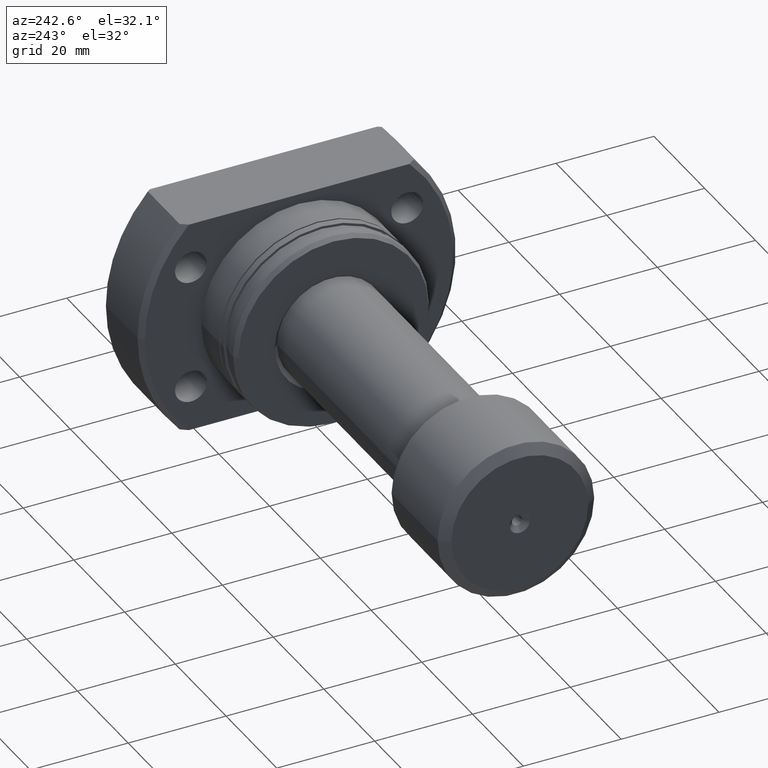
[diagram: clean part render]
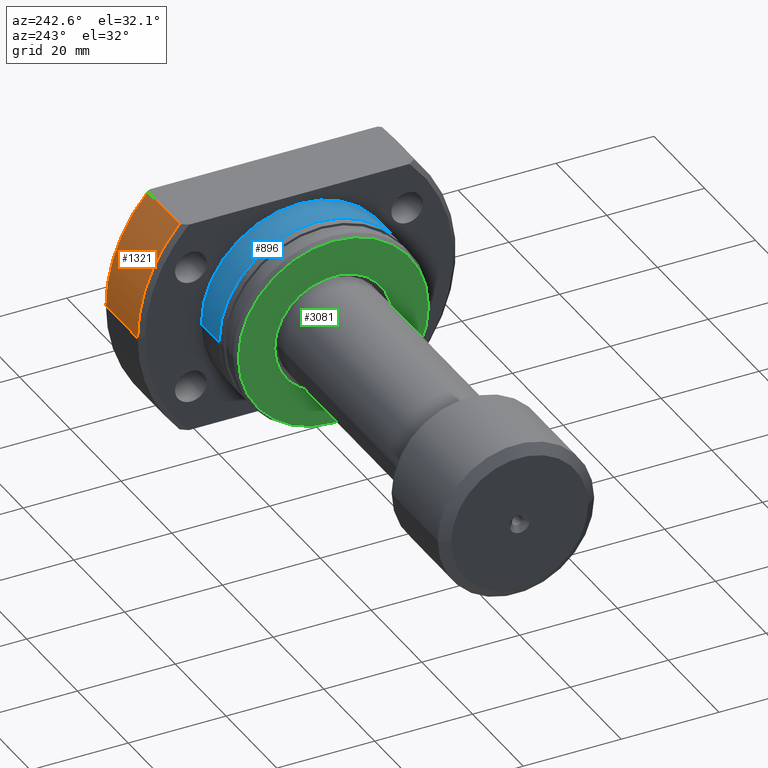
[diagram: same view with three faces highlighted in distinct colors, each labeled with its STEP entity id]
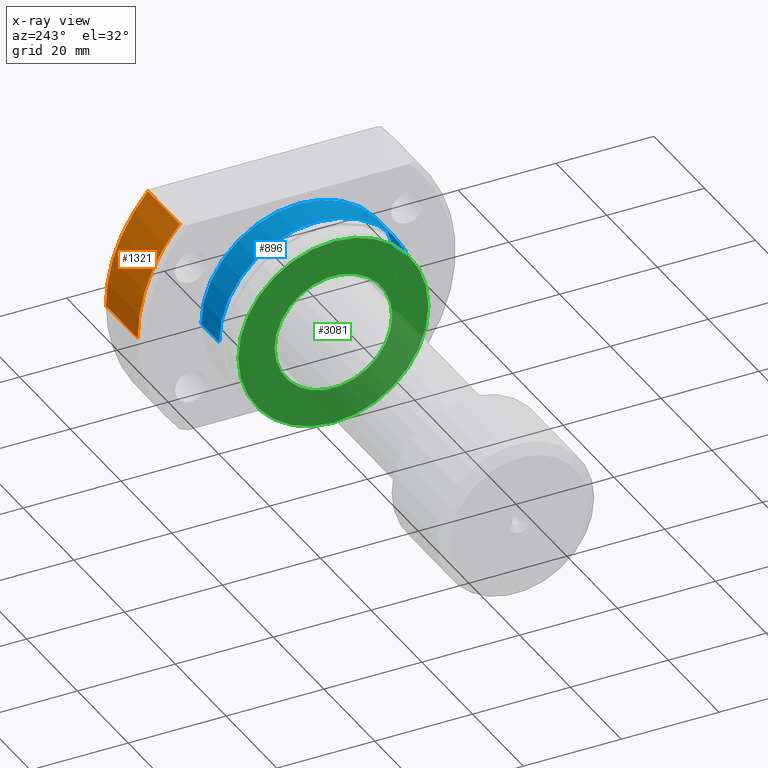
[diagram: x-ray of the same camera — body ghosted, the three highlighted faces saturated]
A machine part, auxiliary view with three faces highlighted in distinct colors.
The next image is the same camera in x-ray (body ghosted, the three faces saturated) — at least one of them is partly hidden behind the body in this view.
Their STEP definitions:

[orange] entity #1321 — the highlighted cylindrical surface (partial cylindrical patch) has radius 32.5 mm, axis along (1, 0, 0).
#250 = VECTOR ( 'NONE', #1347, 1000.000000000000000 ) ;
#399 = CARTESIAN_POINT ( 'NONE',  ( -2.428612866367529932E-13, 23.92174742781206120, 22.00000000000000000 ) ) ;
#446 = ORIENTED_EDGE ( 'NONE', *, *, #2474, .T. ) ;
#653 = DIRECTION ( 'NONE',  ( 0.000000000000000000, 1.000000000000000000, 0.000000000000000000 ) ) ;
#688 = CARTESIAN_POINT ( 'NONE',  ( 14.49999999999999289, 1.937168573196720858E-16, 0.000000000000000000 ) ) ;
#698 = EDGE_CURVE ( 'NONE', #1641, #2613, #2348, .T. ) ;
#851 = VERTEX_POINT ( 'NONE', #1273 ) ;
#894 = CARTESIAN_POINT ( 'NONE',  ( 27.50000000000000355, 3.673940397442059375E-16, 0.000000000000000000 ) ) ;
#982 = AXIS2_PLACEMENT_3D ( 'NONE', #894, #2607, #653 ) ;
#998 = ORIENTED_EDGE ( 'NONE', *, *, #3021, .T. ) ;
#1109 = DIRECTION ( 'NONE',  ( 1.000000000000000000, 1.335978326342566810E-17, -0.000000000000000000 ) ) ;
#1120 = CYLINDRICAL_SURFACE ( 'NONE', #982, 32.49999999999991473 ) ;
#1215 = VERTEX_POINT ( 'NONE', #2322 ) ;
#1273 = CARTESIAN_POINT ( 'NONE',  ( 14.49999999999999289, 23.92174742781164198, 22.00000000000000000 ) ) ;
#1321 = ADVANCED_FACE ( 'NONE', ( #2370 ), #1120, .T. ) ;
#1347 = DIRECTION ( 'NONE',  ( 1.000000000000000000, -2.886466111666351885E-14, -0.000000000000000000 ) ) ;
#1454 = ORIENTED_EDGE ( 'NONE', *, *, #2344, .F. ) ;
#1610 = EDGE_LOOP ( 'NONE', ( #1454, #446, #998, #2695 ) ) ;
#1641 = VERTEX_POINT ( 'NONE', #2858 ) ;
#1729 = LINE ( 'NONE', #2985, #2475 ) ;
#1776 = DIRECTION ( 'NONE',  ( 1.000000000000000000, 1.335978326342566810E-17, -0.000000000000000000 ) ) ;
#1849 = DIRECTION ( 'NONE',  ( 0.000000000000000000, 1.000000000000000000, 0.000000000000000000 ) ) ;
#2069 = DIRECTION ( 'NONE',  ( 0.000000000000000000, 1.000000000000000000, 0.000000000000000000 ) ) ;
#2300 = AXIS2_PLACEMENT_3D ( 'NONE', #2780, #1776, #2069 ) ;
#2322 = CARTESIAN_POINT ( 'NONE',  ( 14.49999999999999289, 32.49999999999991473, 0.000000000000000000 ) ) ;
#2344 = EDGE_CURVE ( 'NONE', #1215, #1641, #1729, .T. ) ;
#2348 = CIRCLE ( 'NONE', #2300, 32.49999999999991473 ) ;
#2370 = FACE_OUTER_BOUND ( 'NONE', #1610, .T. ) ;
#2474 = EDGE_CURVE ( 'NONE', #1215, #851, #2681, .T. ) ;
#2475 = VECTOR ( 'NONE', #3186, 1000.000000000000000 ) ;
#2570 = LINE ( 'NONE', #399, #250 ) ;
#2607 = DIRECTION ( 'NONE',  ( 1.000000000000000000, 1.335978326342566810E-17, -0.000000000000000000 ) ) ;
#2613 = VERTEX_POINT ( 'NONE', #2973 ) ;
#2681 = CIRCLE ( 'NONE', #2946, 32.49999999999991473 ) ;
#2695 = ORIENTED_EDGE ( 'NONE', *, *, #698, .F. ) ;
#2780 = CARTESIAN_POINT ( 'NONE',  ( 27.00000000000008527, 3.607141481124941789E-16, 0.000000000000000000 ) ) ;
#2858 = CARTESIAN_POINT ( 'NONE',  ( 27.00000000000008527, 32.49999999999991473, 0.000000000000000000 ) ) ;
#2946 = AXIS2_PLACEMENT_3D ( 'NONE', #688, #1109, #1849 ) ;
#2973 = CARTESIAN_POINT ( 'NONE',  ( 27.00000000000007105, 23.92174742781127961, 22.00000000000000000 ) ) ;
#2985 = CARTESIAN_POINT ( 'NONE',  ( 27.50000000000000355, 32.49999999999991473, 0.000000000000000000 ) ) ;
#3021 = EDGE_CURVE ( 'NONE', #851, #2613, #2570, .T. ) ;
#3186 = DIRECTION ( 'NONE',  ( 1.000000000000000000, 1.335978326342566810E-17, -0.000000000000000000 ) ) ;

[blue] entity #896 — the highlighted cylindrical surface (partial cylindrical patch) has radius 20 mm, axis along (1, 0, 0).
#95 = CIRCLE ( 'NONE', #2793, 19.99999999999999645 ) ;
#104 = EDGE_LOOP ( 'NONE', ( #3094, #1608, #2749, #2316 ) ) ;
#158 = DIRECTION ( 'NONE',  ( 0.000000000000000000, 1.000000000000000000, 0.000000000000000000 ) ) ;
#288 = VERTEX_POINT ( 'NONE', #629 ) ;
#360 = AXIS2_PLACEMENT_3D ( 'NONE', #1092, #1815, #600 ) ;
#384 = CARTESIAN_POINT ( 'NONE',  ( 13.50000000000000355, -19.99999999999999645, 2.449293598294706119E-15 ) ) ;
#467 = CARTESIAN_POINT ( 'NONE',  ( 27.50000000000000355, 3.673940397442059375E-16, 0.000000000000000000 ) ) ;
#585 = VECTOR ( 'NONE', #2517, 1000.000000000000000 ) ;
#600 = DIRECTION ( 'NONE',  ( 0.000000000000000000, 1.000000000000000000, 0.000000000000000000 ) ) ;
#624 = EDGE_CURVE ( 'NONE', #2519, #288, #2532, .T. ) ;
#629 = CARTESIAN_POINT ( 'NONE',  ( 13.50000000000000355, 19.99999999999999645, 0.000000000000000000 ) ) ;
#843 = VECTOR ( 'NONE', #2352, 1000.000000000000000 ) ;
#859 = DIRECTION ( 'NONE',  ( 1.000000000000000000, 1.335978326342566810E-17, -0.000000000000000000 ) ) ;
#863 = CARTESIAN_POINT ( 'NONE',  ( 6.499999999999783284, 19.99999999999999645, 0.000000000000000000 ) ) ;
#896 = ADVANCED_FACE ( 'NONE', ( #2653 ), #1426, .T. ) ;
#1086 = EDGE_CURVE ( 'NONE', #2715, #2232, #1900, .T. ) ;
#1092 = CARTESIAN_POINT ( 'NONE',  ( 13.50000000000000355, 1.803570740562465471E-16, 0.000000000000000000 ) ) ;
#1327 = CARTESIAN_POINT ( 'NONE',  ( 27.50000000000000355, -19.99999999999999645, 2.449293598294706119E-15 ) ) ;
#1426 = CYLINDRICAL_SURFACE ( 'NONE', #1885, 19.99999999999999645 ) ;
#1608 = ORIENTED_EDGE ( 'NONE', *, *, #1086, .T. ) ;
#1613 = EDGE_CURVE ( 'NONE', #288, #2232, #2699, .T. ) ;
#1694 = DIRECTION ( 'NONE',  ( 0.000000000000000000, 1.000000000000000000, 0.000000000000000000 ) ) ;
#1815 = DIRECTION ( 'NONE',  ( 1.000000000000000000, 1.335978326342566810E-17, -0.000000000000000000 ) ) ;
#1885 = AXIS2_PLACEMENT_3D ( 'NONE', #467, #2639, #1694 ) ;
#1900 = LINE ( 'NONE', #1327, #843 ) ;
#1968 = CARTESIAN_POINT ( 'NONE',  ( 6.499999999999783284, -19.99999999999999645, 2.449293598294706119E-15 ) ) ;
#2232 = VERTEX_POINT ( 'NONE', #384 ) ;
#2316 = ORIENTED_EDGE ( 'NONE', *, *, #624, .F. ) ;
#2352 = DIRECTION ( 'NONE',  ( 1.000000000000000000, 1.335978326342566810E-17, -0.000000000000000000 ) ) ;
#2517 = DIRECTION ( 'NONE',  ( 1.000000000000000000, 1.335978326342566810E-17, -0.000000000000000000 ) ) ;
#2519 = VERTEX_POINT ( 'NONE', #863 ) ;
#2532 = LINE ( 'NONE', #2795, #585 ) ;
#2639 = DIRECTION ( 'NONE',  ( 1.000000000000000000, 1.335978326342566810E-17, -0.000000000000000000 ) ) ;
#2653 = FACE_OUTER_BOUND ( 'NONE', #104, .T. ) ;
#2699 = CIRCLE ( 'NONE', #360, 19.99999999999999645 ) ;
#2715 = VERTEX_POINT ( 'NONE', #1968 ) ;
#2749 = ORIENTED_EDGE ( 'NONE', *, *, #1613, .F. ) ;
#2793 = AXIS2_PLACEMENT_3D ( 'NONE', #3086, #859, #158 ) ;
#2795 = CARTESIAN_POINT ( 'NONE',  ( 27.50000000000000355, 19.99999999999999645, 0.000000000000000000 ) ) ;
#3039 = EDGE_CURVE ( 'NONE', #2519, #2715, #95, .T. ) ;
#3086 = CARTESIAN_POINT ( 'NONE',  ( 6.499999999999783284, 8.683859121226395531E-17, 0.000000000000000000 ) ) ;
#3094 = ORIENTED_EDGE ( 'NONE', *, *, #3039, .T. ) ;

[green] entity #3081 — the highlighted planar face has unit normal (1, 0, 0).
#147 = CIRCLE ( 'NONE', #1874, 12.00000000000039613 ) ;
#302 = DIRECTION ( 'NONE',  ( -1.335978326342566194E-17, 1.000000000000000000, 0.000000000000000000 ) ) ;
#304 = DIRECTION ( 'NONE',  ( -1.335978326342567272E-17, 1.000000000000000000, 0.000000000000000000 ) ) ;
#431 = VERTEX_POINT ( 'NONE', #2088 ) ;
#555 = DIRECTION ( 'NONE',  ( 1.000000000000000000, 1.335978326342566810E-17, -0.000000000000000000 ) ) ;
#565 = CIRCLE ( 'NONE', #777, 19.42264973081037027 ) ;
#666 = CARTESIAN_POINT ( 'NONE',  ( 1.059553095787339848E-15, -2.954820703888036224E-29, 0.000000000000000000 ) ) ;
#720 = VERTEX_POINT ( 'NONE', #771 ) ;
#771 = CARTESIAN_POINT ( 'NONE',  ( 1.276393530284440735E-15, -11.99999999999970335, 0.000000000000000000 ) ) ;
#777 = AXIS2_PLACEMENT_3D ( 'NONE', #2136, #898, #2876 ) ;
#898 = DIRECTION ( 'NONE',  ( 1.000000000000000000, 1.335978326342566810E-17, -0.000000000000000000 ) ) ;
#935 = VERTEX_POINT ( 'NONE', #2189 ) ;
#1111 = EDGE_LOOP ( 'NONE', ( #2794, #2107 ) ) ;
#1137 = DIRECTION ( 'NONE',  ( 1.000000000000000000, 1.335978326342566810E-17, -0.000000000000000000 ) ) ;
#1146 = EDGE_CURVE ( 'NONE', #935, #1758, #2654, .T. ) ;
#1160 = CARTESIAN_POINT ( 'NONE',  ( 3.209964561148554822E-15, 19.42264973081037027, 0.000000000000000000 ) ) ;
#1371 = EDGE_LOOP ( 'NONE', ( #2025, #1721 ) ) ;
#1399 = AXIS2_PLACEMENT_3D ( 'NONE', #666, #1137, #1867 ) ;
#1428 = CARTESIAN_POINT ( 'NONE',  ( 1.059553095787363711E-15, 1.415539971581087523E-32, 0.000000000000000000 ) ) ;
#1442 = FACE_BOUND ( 'NONE', #1371, .T. ) ;
#1474 = PLANE ( 'NONE',  #2334 ) ;
#1574 = EDGE_CURVE ( 'NONE', #431, #720, #147, .T. ) ;
#1721 = ORIENTED_EDGE ( 'NONE', *, *, #1574, .T. ) ;
#1758 = VERTEX_POINT ( 'NONE', #1160 ) ;
#1768 = CARTESIAN_POINT ( 'NONE',  ( 3.469446951953614189E-15, 4.814824860968089633E-32, 0.000000000000000000 ) ) ;
#1867 = DIRECTION ( 'NONE',  ( -1.335978326342567272E-17, 1.000000000000000000, 0.000000000000000000 ) ) ;
#1874 = AXIS2_PLACEMENT_3D ( 'NONE', #2838, #3102, #304 ) ;
#2025 = ORIENTED_EDGE ( 'NONE', *, *, #2996, .T. ) ;
#2088 = CARTESIAN_POINT ( 'NONE',  ( 8.427126612902389615E-16, 12.00000000000039613, 1.469576158976872462E-15 ) ) ;
#2107 = ORIENTED_EDGE ( 'NONE', *, *, #1146, .F. ) ;
#2136 = CARTESIAN_POINT ( 'NONE',  ( 3.469446951953614189E-15, 4.814824860968089633E-32, 0.000000000000000000 ) ) ;
#2149 = AXIS2_PLACEMENT_3D ( 'NONE', #1768, #555, #302 ) ;
#2189 = CARTESIAN_POINT ( 'NONE',  ( 3.728929342758673161E-15, -19.42264973081037027, 2.413941090337209377E-15 ) ) ;
#2334 = AXIS2_PLACEMENT_3D ( 'NONE', #1428, #2413, #2426 ) ;
#2413 = DIRECTION ( 'NONE',  ( 1.000000000000000000, 1.335978326342566810E-17, -0.000000000000000000 ) ) ;
#2426 = DIRECTION ( 'NONE',  ( -1.335978326342566810E-17, 1.000000000000000000, 0.000000000000000000 ) ) ;
#2528 = CIRCLE ( 'NONE', #1399, 12.00000000000039613 ) ;
#2579 = EDGE_CURVE ( 'NONE', #1758, #935, #565, .T. ) ;
#2654 = CIRCLE ( 'NONE', #2149, 19.42264973081037027 ) ;
#2794 = ORIENTED_EDGE ( 'NONE', *, *, #2579, .F. ) ;
#2838 = CARTESIAN_POINT ( 'NONE',  ( 1.059553095787339848E-15, -2.954820703888036224E-29, 0.000000000000000000 ) ) ;
#2876 = DIRECTION ( 'NONE',  ( -1.335978326342566194E-17, 1.000000000000000000, 0.000000000000000000 ) ) ;
#2996 = EDGE_CURVE ( 'NONE', #720, #431, #2528, .T. ) ;
#3081 = ADVANCED_FACE ( 'NONE', ( #1442, #3170 ), #1474, .F. ) ;
#3102 = DIRECTION ( 'NONE',  ( 1.000000000000000000, 1.335978326342566810E-17, -0.000000000000000000 ) ) ;
#3170 = FACE_OUTER_BOUND ( 'NONE', #1111, .T. ) ;